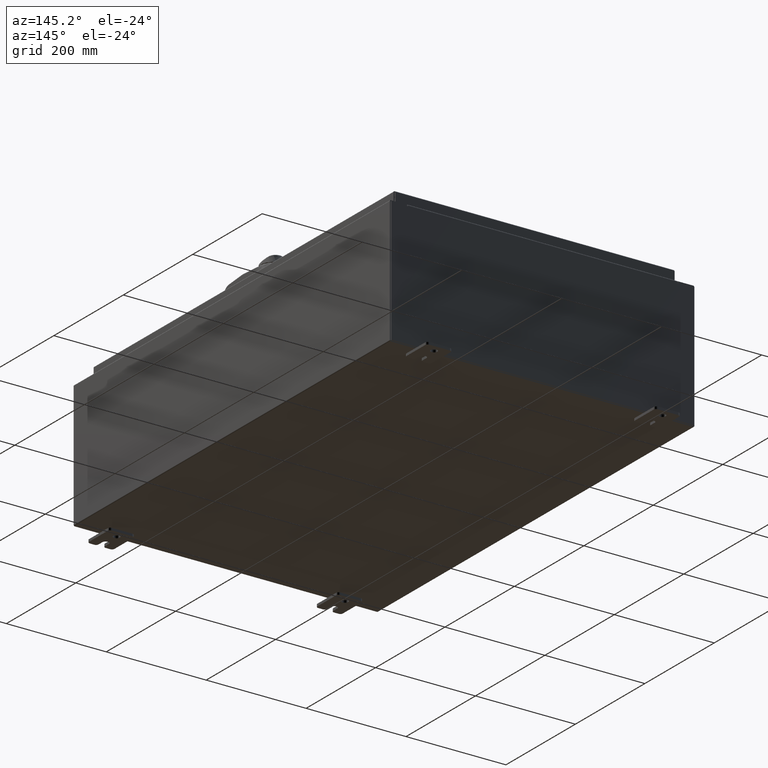
[diagram: clean part render]
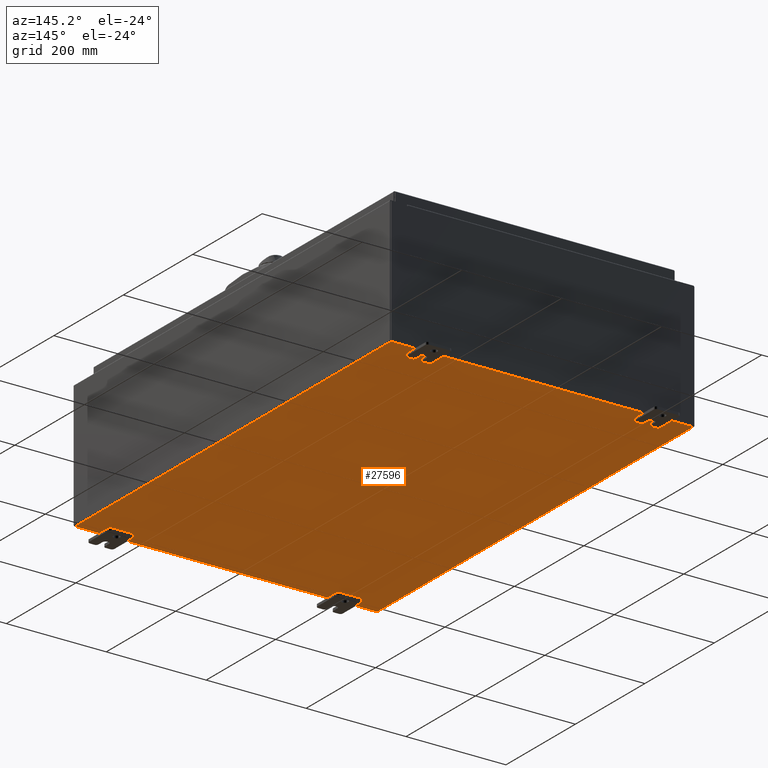
[diagram: same view with one face highlighted and labeled with its STEP entity id]
A machine part, auxiliary view. The second image highlights one B-rep face of the part: STEP entity #27596.
In plain terms, the highlighted planar face has unit normal (0, 0, -1).
Its self-contained STEP definition (entity closure, byte-faithful):
#1909 = VECTOR ( 'NONE', #78142, 39.37007874015748100 ) ;
#3793 = CARTESIAN_POINT ( 'NONE',  ( -12.00000000000000200, 17.92529999999999600, -0.07470000000000000300 ) ) ;
#7907 = EDGE_CURVE ( 'NONE', #62038, #26019, #102591, .T. ) ;
#14601 = EDGE_CURVE ( 'NONE', #95101, #26019, #66877, .T. ) ;
#21619 = CARTESIAN_POINT ( 'NONE',  ( 11.91230000000000000, 17.92529999999999600, -0.07469999999999738000 ) ) ;
#24035 = CARTESIAN_POINT ( 'NONE',  ( 11.91229999999999100, -17.92530000000000400, -0.07470000000000000300 ) ) ;
#26019 = VERTEX_POINT ( 'NONE', #88947 ) ;
#26330 = EDGE_CURVE ( 'NONE', #95101, #35888, #62428, .T. ) ;
#27596 = ADVANCED_FACE ( 'NONE', ( #113775 ), #75549, .T. ) ;
#30919 = CARTESIAN_POINT ( 'NONE',  ( 11.91230000000000000, 17.92529999999999600, -0.07469999999999738000 ) ) ;
#35888 = VERTEX_POINT ( 'NONE', #24035 ) ;
#38379 = ORIENTED_EDGE ( 'NONE', *, *, #14601, .T. ) ;
#40701 = CARTESIAN_POINT ( 'NONE',  ( -11.91230000000000000, -17.92530000000000400, -0.07469999999999994700 ) ) ;
#41935 = VECTOR ( 'NONE', #90734, 39.37007874015748100 ) ;
#43265 = AXIS2_PLACEMENT_3D ( 'NONE', #94481, #103943, #47632 ) ;
#47632 = DIRECTION ( 'NONE',  ( -1.000000000000000000, 0.0000000000000000000, -0.0000000000000000000 ) ) ;
#50656 = DIRECTION ( 'NONE',  ( -1.000000000000000000, -0.0000000000000000000, -0.0000000000000000000 ) ) ;
#52905 = CARTESIAN_POINT ( 'NONE',  ( -12.00000000000000200, -17.92530000000000400, -0.07470000000000000300 ) ) ;
#60544 = ORIENTED_EDGE ( 'NONE', *, *, #62649, .T. ) ;
#62038 = VERTEX_POINT ( 'NONE', #21619 ) ;
#62428 = LINE ( 'NONE', #52905, #109553 ) ;
#62649 = EDGE_CURVE ( 'NONE', #62038, #35888, #101975, .T. ) ;
#64734 = EDGE_LOOP ( 'NONE', ( #114019, #38379, #100540, #60544 ) ) ;
#66877 = LINE ( 'NONE', #99825, #41935 ) ;
#74618 = VECTOR ( 'NONE', #50656, 39.37007874015748100 ) ;
#75549 = PLANE ( 'NONE',  #43265 ) ;
#78142 = DIRECTION ( 'NONE',  ( -0.0000000000000000000, -1.000000000000000000, -8.208677865577646300E-017 ) ) ;
#88947 = CARTESIAN_POINT ( 'NONE',  ( -11.91230000000000000, 17.92529999999999600, -0.07470000000000000300 ) ) ;
#90712 = DIRECTION ( 'NONE',  ( 1.000000000000000000, 0.0000000000000000000, 0.0000000000000000000 ) ) ;
#90734 = DIRECTION ( 'NONE',  ( -0.0000000000000000000, 1.000000000000000000, -0.0000000000000000000 ) ) ;
#94481 = CARTESIAN_POINT ( 'NONE',  ( 0.0000000000000000000, 0.0000000000000000000, -0.07470000000000000300 ) ) ;
#95101 = VERTEX_POINT ( 'NONE', #40701 ) ;
#99825 = CARTESIAN_POINT ( 'NONE',  ( -11.91230000000000000, -17.92530000000000400, -0.07469999999999994700 ) ) ;
#100540 = ORIENTED_EDGE ( 'NONE', *, *, #7907, .F. ) ;
#101975 = LINE ( 'NONE', #30919, #1909 ) ;
#102591 = LINE ( 'NONE', #3793, #74618 ) ;
#103943 = DIRECTION ( 'NONE',  ( 0.0000000000000000000, 0.0000000000000000000, -1.000000000000000000 ) ) ;
#109553 = VECTOR ( 'NONE', #90712, 39.37007874015748100 ) ;
#113775 = FACE_OUTER_BOUND ( 'NONE', #64734, .T. ) ;
#114019 = ORIENTED_EDGE ( 'NONE', *, *, #26330, .F. ) ;